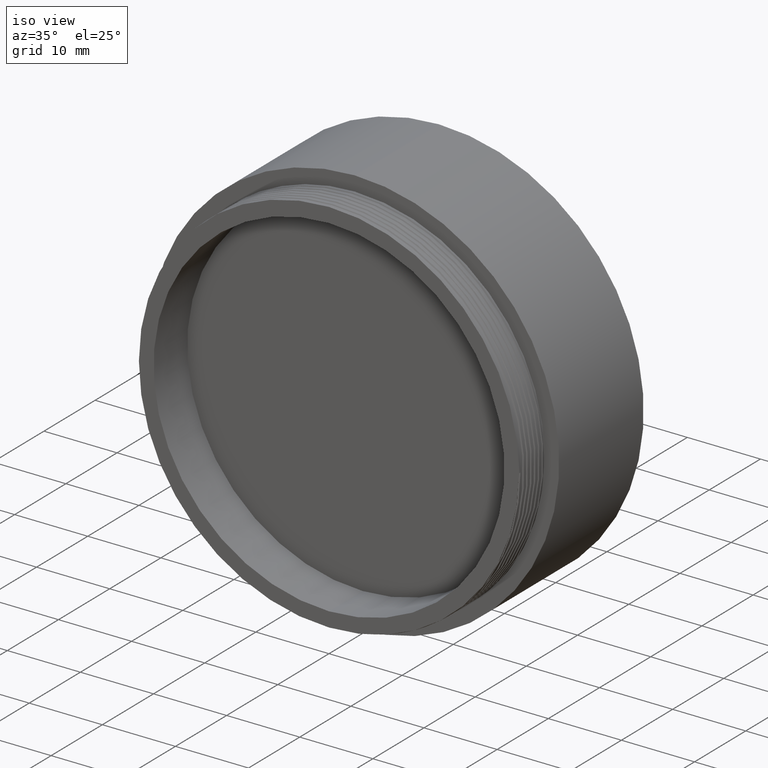
[diagram: clean part render]
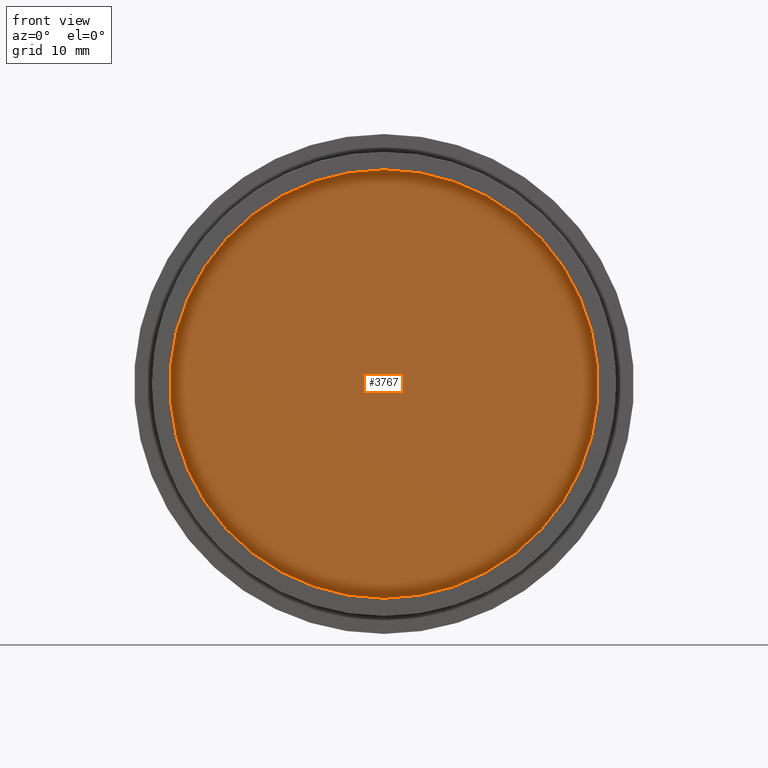
[diagram: tour spotlight — one face highlighted and labeled with its STEP entity id]
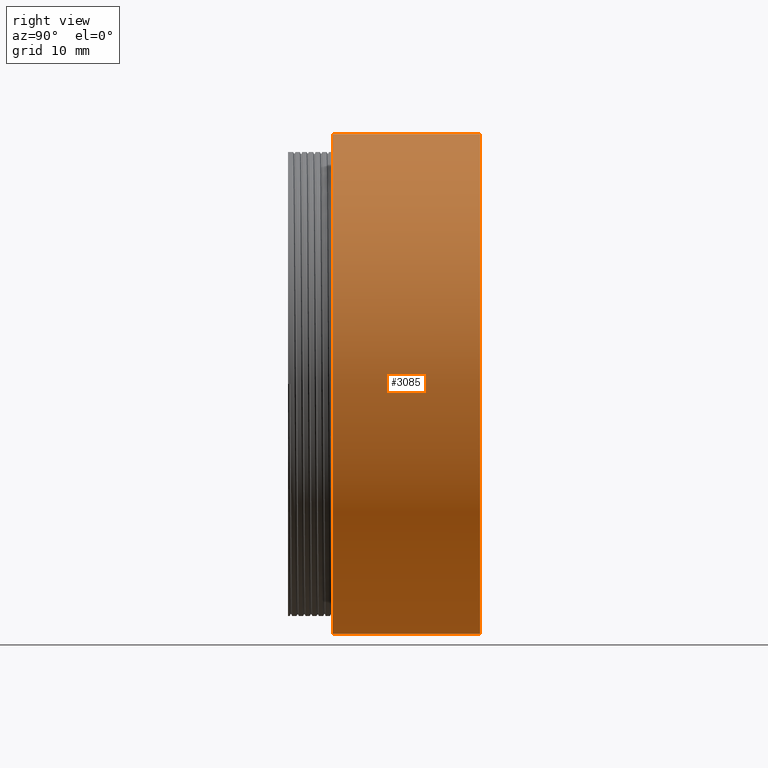
[diagram: tour spotlight — one face highlighted and labeled with its STEP entity id]
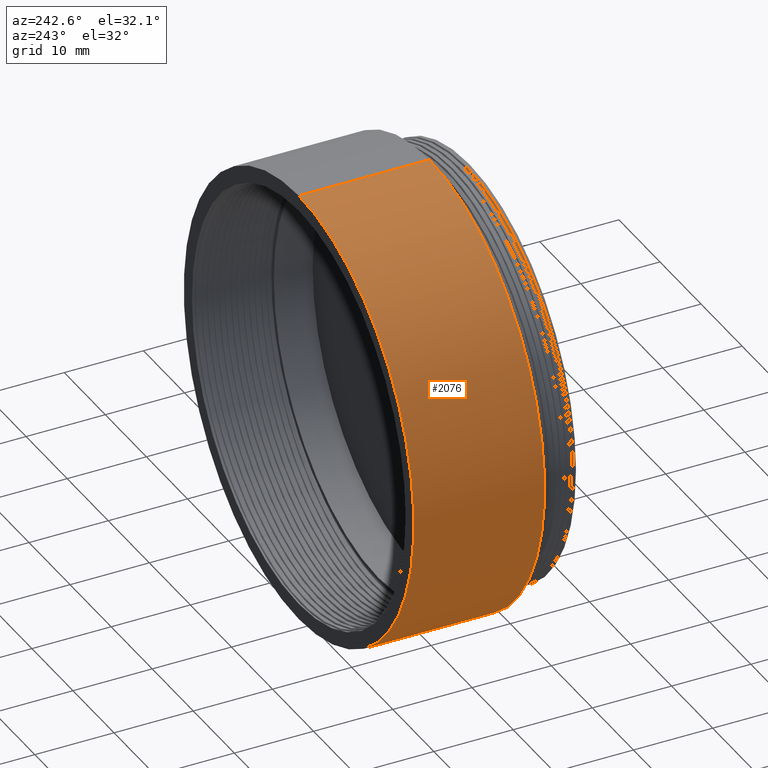
[diagram: tour spotlight — one face highlighted and labeled with its STEP entity id]
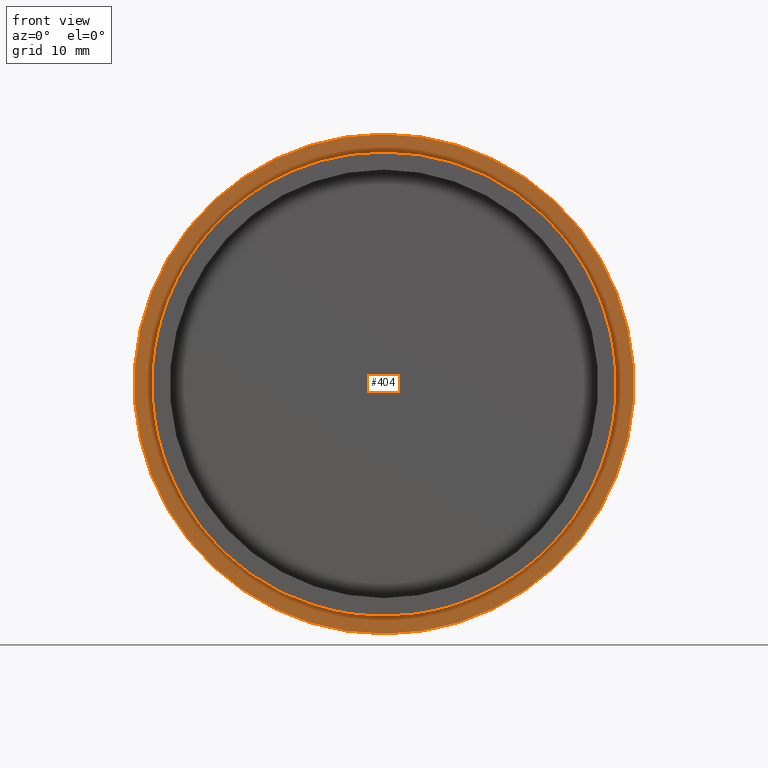
[diagram: tour spotlight — one face highlighted and labeled with its STEP entity id]
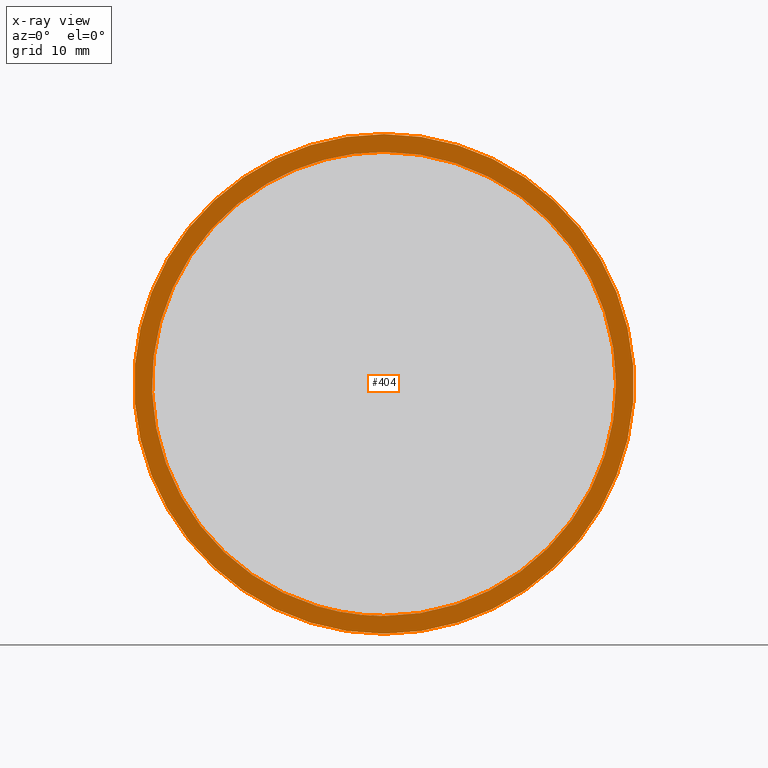
[diagram: x-ray of the same camera — body ghosted, this tour face saturated]
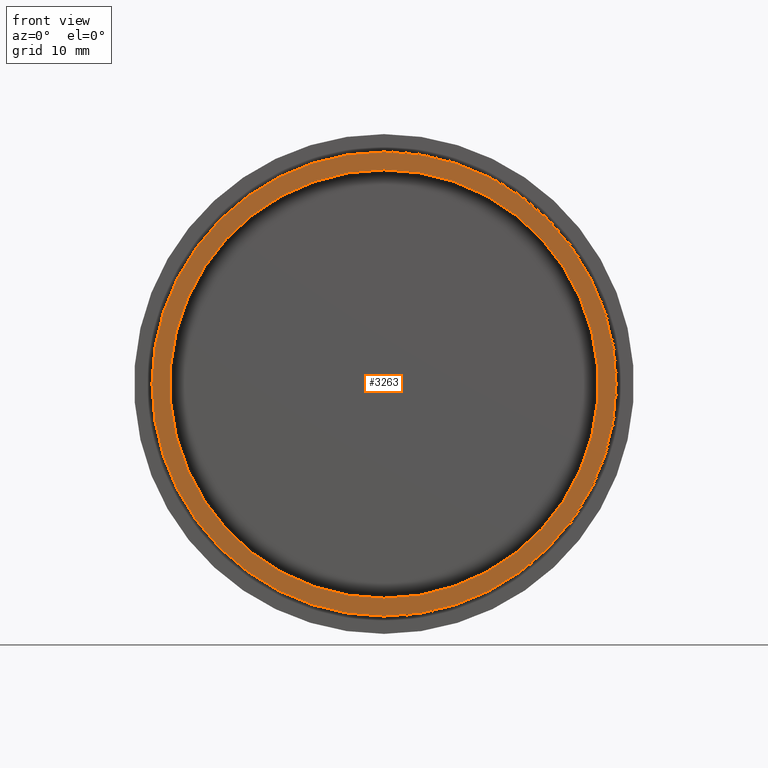
[diagram: tour spotlight — one face highlighted and labeled with its STEP entity id]
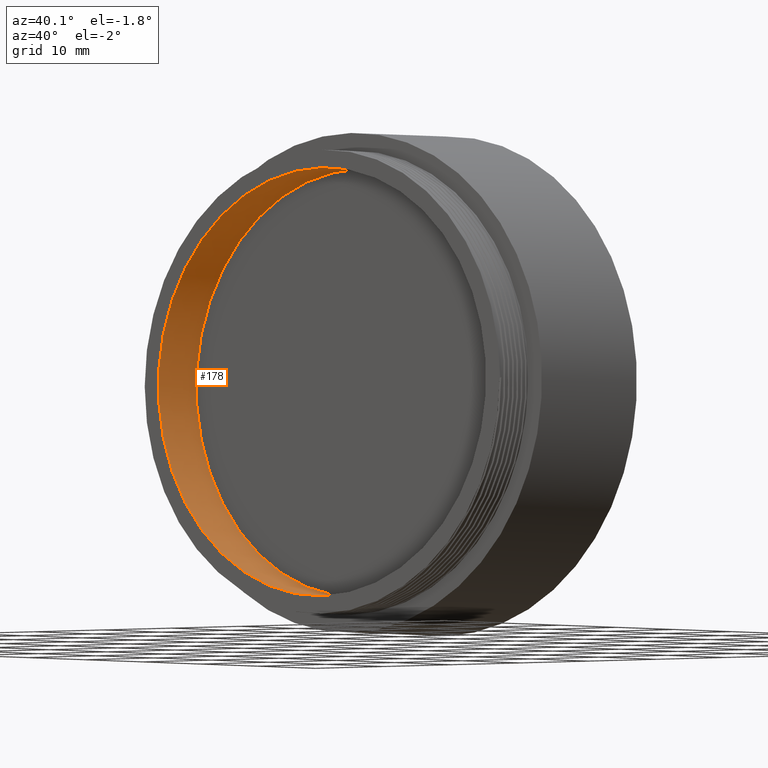
[diagram: tour spotlight — one face highlighted and labeled with its STEP entity id]
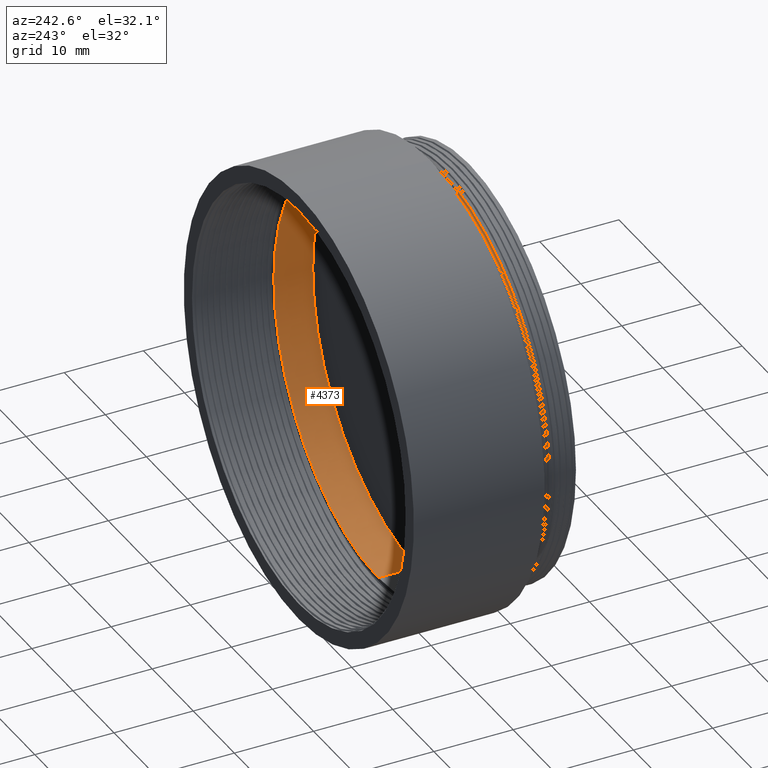
[diagram: tour spotlight — one face highlighted and labeled with its STEP entity id]
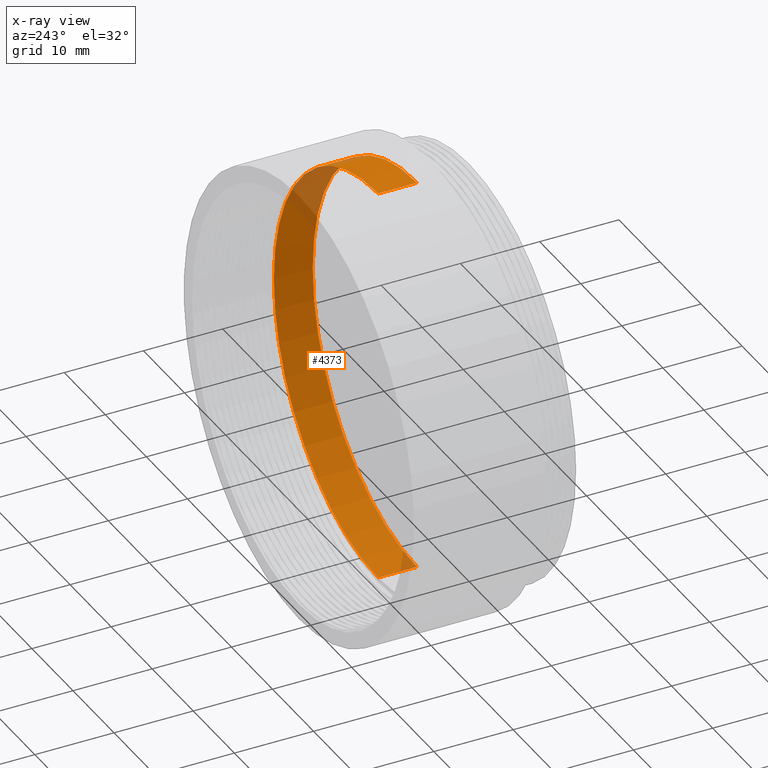
[diagram: x-ray of the same camera — body ghosted, this tour face saturated]
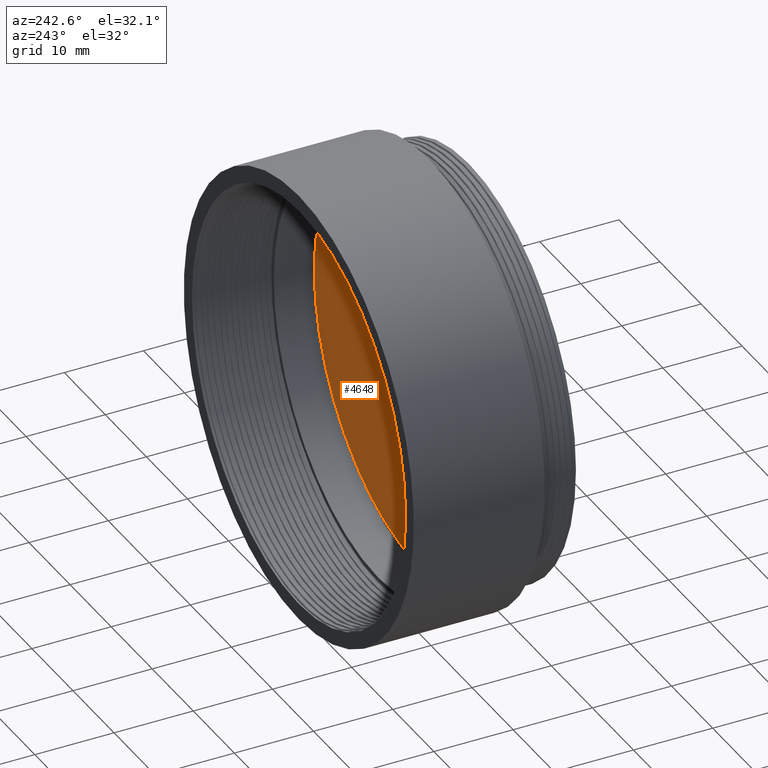
[diagram: tour spotlight — one face highlighted and labeled with its STEP entity id]
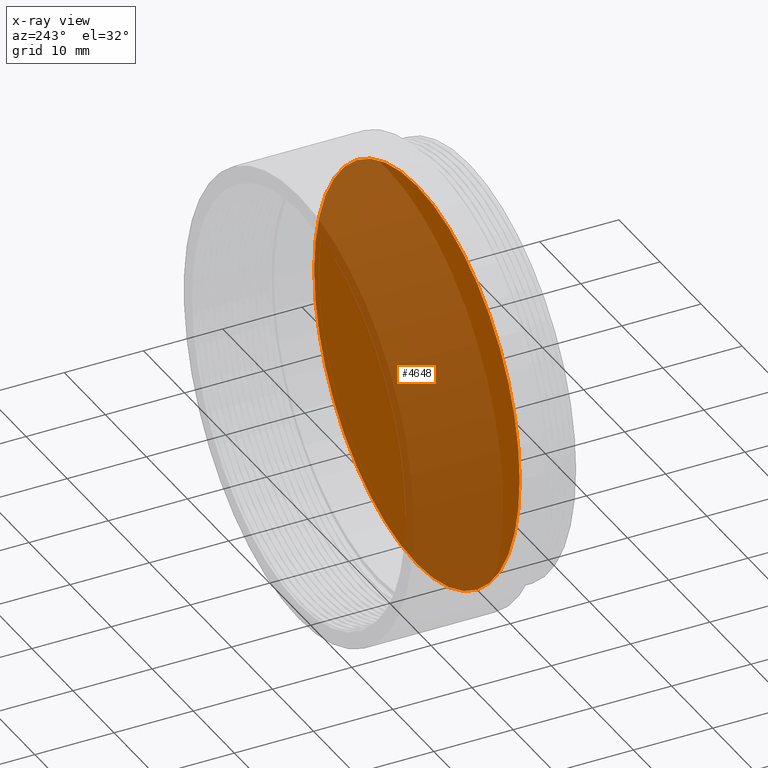
[diagram: x-ray of the same camera — body ghosted, this tour face saturated]
A machine part: a face-by-face anatomy tour. The part has 71 B-rep faces; the first image is the clean iso view, then the 8 largest visible faces are spotlighted one at a time (largest first), each with its STEP entity span.

Face 1 — front view, entity #3767. In plain terms, the highlighted planar face has unit normal (0, 1, 0).
Definition (entity closure, byte-faithful):
#185 = DIRECTION ( 'NONE',  ( 0.000000000000000000, 0.000000000000000000, -1.000000000000000000 ) ) ;
#210 = EDGE_CURVE ( 'NONE', #5360, #2771, #309, .T. ) ;
#303 = DIRECTION ( 'NONE',  ( 0.000000000000000000, -0.000000000000000000, 1.000000000000000000 ) ) ;
#309 = CIRCLE ( 'NONE', #4372, 24.00000000000000000 ) ;
#762 = FACE_OUTER_BOUND ( 'NONE', #3903, .T. ) ;
#931 = AXIS2_PLACEMENT_3D ( 'NONE', #2593, #4278, #185 ) ;
#1780 = ORIENTED_EDGE ( 'NONE', *, *, #4039, .T. ) ;
#1892 = DIRECTION ( 'NONE',  ( -0.000000000000000000, -1.000000000000000000, -0.000000000000000000 ) ) ;
#1907 = ORIENTED_EDGE ( 'NONE', *, *, #210, .T. ) ;
#2075 = CARTESIAN_POINT ( 'NONE',  ( 0.000000000000000000, 6.581606431413368874, -24.00000000000000000 ) ) ;
#2467 = CARTESIAN_POINT ( 'NONE',  ( 0.000000000000000000, 6.581606431413368874, 0.000000000000000000 ) ) ;
#2593 = CARTESIAN_POINT ( 'NONE',  ( 0.000000000000000000, 6.581606431413368874, 0.000000000000000000 ) ) ;
#2768 = CARTESIAN_POINT ( 'NONE',  ( 2.939152317953647894E-15, 6.581606431413368874, 24.00000000000000000 ) ) ;
#2771 = VERTEX_POINT ( 'NONE', #2075 ) ;
#2822 = AXIS2_PLACEMENT_3D ( 'NONE', #2467, #4154, #303 ) ;
#3581 = DIRECTION ( 'NONE',  ( 0.000000000000000000, 0.000000000000000000, -1.000000000000000000 ) ) ;
#3663 = PLANE ( 'NONE',  #2822 ) ;
#3767 = ADVANCED_FACE ( 'NONE', ( #762 ), #3663, .F. ) ;
#3773 = CIRCLE ( 'NONE', #931, 24.00000000000000000 ) ;
#3903 = EDGE_LOOP ( 'NONE', ( #1780, #1907 ) ) ;
#3991 = CARTESIAN_POINT ( 'NONE',  ( 0.000000000000000000, 6.581606431413368874, 0.000000000000000000 ) ) ;
#4039 = EDGE_CURVE ( 'NONE', #2771, #5360, #3773, .T. ) ;
#4154 = DIRECTION ( 'NONE',  ( 0.000000000000000000, 1.000000000000000000, 0.000000000000000000 ) ) ;
#4278 = DIRECTION ( 'NONE',  ( -0.000000000000000000, -1.000000000000000000, -0.000000000000000000 ) ) ;
#4372 = AXIS2_PLACEMENT_3D ( 'NONE', #3991, #1892, #3581 ) ;
#5360 = VERTEX_POINT ( 'NONE', #2768 ) ;

Face 2 — right view, entity #3085. In plain terms, the highlighted cylindrical surface (partial cylindrical patch) has radius 28 mm, axis along (-0, -1, -0).
Definition (entity closure, byte-faithful):
#18 = CARTESIAN_POINT ( 'NONE',  ( 0.000000000000000000, 21.49999999999999289, 0.000000000000000000 ) ) ;
#96 = ORIENTED_EDGE ( 'NONE', *, *, #3157, .T. ) ;
#108 = CARTESIAN_POINT ( 'NONE',  ( 3.429011037612589276E-15, 5.000000000000000000, 28.00000000000000000 ) ) ;
#233 = VERTEX_POINT ( 'NONE', #108 ) ;
#772 = CIRCLE ( 'NONE', #4590, 28.00000000000000000 ) ;
#815 = CARTESIAN_POINT ( 'NONE',  ( 0.000000000000000000, 0.000000000000000000, -28.00000000000000000 ) ) ;
#1092 = EDGE_CURVE ( 'NONE', #2775, #233, #4147, .T. ) ;
#1098 = ORIENTED_EDGE ( 'NONE', *, *, #1092, .T. ) ;
#1349 = DIRECTION ( 'NONE',  ( 0.000000000000000000, 0.000000000000000000, -1.000000000000000000 ) ) ;
#1506 = AXIS2_PLACEMENT_3D ( 'NONE', #1609, #1684, #3716 ) ;
#1609 = CARTESIAN_POINT ( 'NONE',  ( 0.000000000000000000, 5.000000000000000000, 0.000000000000000000 ) ) ;
#1684 = DIRECTION ( 'NONE',  ( -0.000000000000000000, -1.000000000000000000, -0.000000000000000000 ) ) ;
#2052 = DIRECTION ( 'NONE',  ( -0.000000000000000000, -1.000000000000000000, -0.000000000000000000 ) ) ;
#2070 = CARTESIAN_POINT ( 'NONE',  ( 3.429011037612589276E-15, 0.000000000000000000, 28.00000000000000000 ) ) ;
#2167 = EDGE_CURVE ( 'NONE', #4903, #233, #3715, .T. ) ;
#2270 = CYLINDRICAL_SURFACE ( 'NONE', #4505, 28.00000000000000000 ) ;
#2487 = DIRECTION ( 'NONE',  ( -0.000000000000000000, -1.000000000000000000, -0.000000000000000000 ) ) ;
#2492 = CARTESIAN_POINT ( 'NONE',  ( 3.429011037612589276E-15, 21.49999999999999289, 28.00000000000000000 ) ) ;
#2723 = EDGE_CURVE ( 'NONE', #2863, #4903, #5411, .T. ) ;
#2775 = VERTEX_POINT ( 'NONE', #2492 ) ;
#2863 = VERTEX_POINT ( 'NONE', #4202 ) ;
#2983 = DIRECTION ( 'NONE',  ( -0.000000000000000000, -1.000000000000000000, -0.000000000000000000 ) ) ;
#3042 = VECTOR ( 'NONE', #2487, 1000.000000000000000 ) ;
#3067 = CARTESIAN_POINT ( 'NONE',  ( 0.000000000000000000, 0.000000000000000000, 0.000000000000000000 ) ) ;
#3085 = ADVANCED_FACE ( 'NONE', ( #4343 ), #2270, .T. ) ;
#3132 = ORIENTED_EDGE ( 'NONE', *, *, #2723, .F. ) ;
#3157 = EDGE_CURVE ( 'NONE', #2863, #2775, #772, .T. ) ;
#3214 = VECTOR ( 'NONE', #2052, 1000.000000000000000 ) ;
#3285 = ORIENTED_EDGE ( 'NONE', *, *, #2167, .F. ) ;
#3456 = DIRECTION ( 'NONE',  ( 0.000000000000000000, 0.000000000000000000, -1.000000000000000000 ) ) ;
#3715 = CIRCLE ( 'NONE', #1506, 28.00000000000000000 ) ;
#3716 = DIRECTION ( 'NONE',  ( 0.000000000000000000, 0.000000000000000000, -1.000000000000000000 ) ) ;
#3899 = EDGE_LOOP ( 'NONE', ( #96, #1098, #3285, #3132 ) ) ;
#4147 = LINE ( 'NONE', #2070, #3042 ) ;
#4202 = CARTESIAN_POINT ( 'NONE',  ( 0.000000000000000000, 21.49999999999999289, -28.00000000000000000 ) ) ;
#4288 = CARTESIAN_POINT ( 'NONE',  ( 0.000000000000000000, 5.000000000000000000, -28.00000000000000000 ) ) ;
#4343 = FACE_OUTER_BOUND ( 'NONE', #3899, .T. ) ;
#4505 = AXIS2_PLACEMENT_3D ( 'NONE', #3067, #5120, #3456 ) ;
#4590 = AXIS2_PLACEMENT_3D ( 'NONE', #18, #2983, #1349 ) ;
#4903 = VERTEX_POINT ( 'NONE', #4288 ) ;
#5120 = DIRECTION ( 'NONE',  ( -0.000000000000000000, -1.000000000000000000, -0.000000000000000000 ) ) ;
#5411 = LINE ( 'NONE', #815, #3214 ) ;

Face 3 — auxiliary view, entity #2076. In plain terms, the highlighted cylindrical surface (partial cylindrical patch) has radius 28 mm, axis along (-0, -1, -0).
Definition (entity closure, byte-faithful):
#108 = CARTESIAN_POINT ( 'NONE',  ( 3.429011037612589276E-15, 5.000000000000000000, 28.00000000000000000 ) ) ;
#233 = VERTEX_POINT ( 'NONE', #108 ) ;
#252 = ORIENTED_EDGE ( 'NONE', *, *, #1092, .F. ) ;
#570 = DIRECTION ( 'NONE',  ( -0.000000000000000000, -1.000000000000000000, -0.000000000000000000 ) ) ;
#815 = CARTESIAN_POINT ( 'NONE',  ( 0.000000000000000000, 0.000000000000000000, -28.00000000000000000 ) ) ;
#827 = CIRCLE ( 'NONE', #2786, 28.00000000000000000 ) ;
#1081 = ORIENTED_EDGE ( 'NONE', *, *, #1433, .T. ) ;
#1088 = CARTESIAN_POINT ( 'NONE',  ( 0.000000000000000000, 0.000000000000000000, 0.000000000000000000 ) ) ;
#1092 = EDGE_CURVE ( 'NONE', #2775, #233, #4147, .T. ) ;
#1390 = CIRCLE ( 'NONE', #4579, 28.00000000000000000 ) ;
#1433 = EDGE_CURVE ( 'NONE', #2775, #2863, #827, .T. ) ;
#1479 = CYLINDRICAL_SURFACE ( 'NONE', #5122, 28.00000000000000000 ) ;
#1480 = ORIENTED_EDGE ( 'NONE', *, *, #2723, .T. ) ;
#1536 = DIRECTION ( 'NONE',  ( 0.000000000000000000, 0.000000000000000000, -1.000000000000000000 ) ) ;
#1538 = EDGE_LOOP ( 'NONE', ( #252, #1081, #1480, #4445 ) ) ;
#1861 = DIRECTION ( 'NONE',  ( 0.000000000000000000, 0.000000000000000000, -1.000000000000000000 ) ) ;
#2052 = DIRECTION ( 'NONE',  ( -0.000000000000000000, -1.000000000000000000, -0.000000000000000000 ) ) ;
#2070 = CARTESIAN_POINT ( 'NONE',  ( 3.429011037612589276E-15, 0.000000000000000000, 28.00000000000000000 ) ) ;
#2076 = ADVANCED_FACE ( 'NONE', ( #3140 ), #1479, .T. ) ;
#2347 = CARTESIAN_POINT ( 'NONE',  ( 0.000000000000000000, 21.49999999999999289, 0.000000000000000000 ) ) ;
#2487 = DIRECTION ( 'NONE',  ( -0.000000000000000000, -1.000000000000000000, -0.000000000000000000 ) ) ;
#2492 = CARTESIAN_POINT ( 'NONE',  ( 3.429011037612589276E-15, 21.49999999999999289, 28.00000000000000000 ) ) ;
#2723 = EDGE_CURVE ( 'NONE', #2863, #4903, #5411, .T. ) ;
#2775 = VERTEX_POINT ( 'NONE', #2492 ) ;
#2786 = AXIS2_PLACEMENT_3D ( 'NONE', #2347, #5256, #3262 ) ;
#2863 = VERTEX_POINT ( 'NONE', #4202 ) ;
#3042 = VECTOR ( 'NONE', #2487, 1000.000000000000000 ) ;
#3140 = FACE_OUTER_BOUND ( 'NONE', #1538, .T. ) ;
#3214 = VECTOR ( 'NONE', #2052, 1000.000000000000000 ) ;
#3262 = DIRECTION ( 'NONE',  ( 0.000000000000000000, 0.000000000000000000, -1.000000000000000000 ) ) ;
#3961 = CARTESIAN_POINT ( 'NONE',  ( 0.000000000000000000, 5.000000000000000000, 0.000000000000000000 ) ) ;
#4147 = LINE ( 'NONE', #2070, #3042 ) ;
#4202 = CARTESIAN_POINT ( 'NONE',  ( 0.000000000000000000, 21.49999999999999289, -28.00000000000000000 ) ) ;
#4288 = CARTESIAN_POINT ( 'NONE',  ( 0.000000000000000000, 5.000000000000000000, -28.00000000000000000 ) ) ;
#4445 = ORIENTED_EDGE ( 'NONE', *, *, #5262, .F. ) ;
#4526 = DIRECTION ( 'NONE',  ( -0.000000000000000000, -1.000000000000000000, -0.000000000000000000 ) ) ;
#4579 = AXIS2_PLACEMENT_3D ( 'NONE', #3961, #570, #1861 ) ;
#4903 = VERTEX_POINT ( 'NONE', #4288 ) ;
#5122 = AXIS2_PLACEMENT_3D ( 'NONE', #1088, #4526, #1536 ) ;
#5256 = DIRECTION ( 'NONE',  ( -0.000000000000000000, -1.000000000000000000, -0.000000000000000000 ) ) ;
#5262 = EDGE_CURVE ( 'NONE', #233, #4903, #1390, .T. ) ;
#5411 = LINE ( 'NONE', #815, #3214 ) ;

Face 4 — front view, entity #404. An x-ray twin of the same camera follows (body ghosted, this face saturated) — the face is partly hidden behind the body. In plain terms, the highlighted planar face has unit normal (0, -1, -0).
Definition (entity closure, byte-faithful):
#50 = VERTEX_POINT ( 'NONE', #1475 ) ;
#106 = VERTEX_POINT ( 'NONE', #424 ) ;
#108 = CARTESIAN_POINT ( 'NONE',  ( 3.429011037612589276E-15, 5.000000000000000000, 28.00000000000000000 ) ) ;
#233 = VERTEX_POINT ( 'NONE', #108 ) ;
#294 = ORIENTED_EDGE ( 'NONE', *, *, #5262, .T. ) ;
#362 = ORIENTED_EDGE ( 'NONE', *, *, #3361, .F. ) ;
#404 = ADVANCED_FACE ( 'NONE', ( #1899, #1453 ), #2780, .T. ) ;
#424 = CARTESIAN_POINT ( 'NONE',  ( 3.184081677783118191E-15, 5.000000000000000888, 26.00000000000000000 ) ) ;
#570 = DIRECTION ( 'NONE',  ( -0.000000000000000000, -1.000000000000000000, -0.000000000000000000 ) ) ;
#737 = ORIENTED_EDGE ( 'NONE', *, *, #4990, .F. ) ;
#904 = DIRECTION ( 'NONE',  ( -0.000000000000000000, -1.000000000000000000, -0.000000000000000000 ) ) ;
#929 = EDGE_LOOP ( 'NONE', ( #737, #4405, #2657, #362 ) ) ;
#976 = CARTESIAN_POINT ( 'NONE',  ( 0.000000000000000000, 5.000000000000000888, 0.000000000000000000 ) ) ;
#1223 = CIRCLE ( 'NONE', #2189, 26.00000000000000000 ) ;
#1333 = DIRECTION ( 'NONE',  ( 0.000000000000000000, 0.000000000000000000, -1.000000000000000000 ) ) ;
#1355 = CARTESIAN_POINT ( 'NONE',  ( 0.000000000000000000, 5.000000000000000888, 0.000000000000000000 ) ) ;
#1390 = CIRCLE ( 'NONE', #4579, 28.00000000000000000 ) ;
#1427 = DIRECTION ( 'NONE',  ( 0.000000000000000000, 0.000000000000000000, -1.000000000000000000 ) ) ;
#1453 = FACE_BOUND ( 'NONE', #929, .T. ) ;
#1475 = CARTESIAN_POINT ( 'NONE',  ( -12.99999851069322254, 4.999818409233385275, 22.51666135824700987 ) ) ;
#1506 = AXIS2_PLACEMENT_3D ( 'NONE', #1609, #1684, #3716 ) ;
#1572 = AXIS2_PLACEMENT_3D ( 'NONE', #976, #2642, #4389 ) ;
#1584 = CARTESIAN_POINT ( 'NONE',  ( -7.510375682130030484, 5.000000000000010658, -24.89165034932938880 ) ) ;
#1609 = CARTESIAN_POINT ( 'NONE',  ( 0.000000000000000000, 5.000000000000000000, 0.000000000000000000 ) ) ;
#1637 = EDGE_CURVE ( 'NONE', #106, #50, #2992, .T. ) ;
#1651 = CIRCLE ( 'NONE', #1572, 26.00000000000000000 ) ;
#1684 = DIRECTION ( 'NONE',  ( -0.000000000000000000, -1.000000000000000000, -0.000000000000000000 ) ) ;
#1695 = DIRECTION ( 'NONE',  ( -0.000000000000000000, -1.000000000000000000, -0.000000000000000000 ) ) ;
#1757 = AXIS2_PLACEMENT_3D ( 'NONE', #2013, #5400, #1333 ) ;
#1850 = CARTESIAN_POINT ( 'NONE',  ( 0.000000000000000000, 5.000000000000000888, -26.00000000000000000 ) ) ;
#1861 = DIRECTION ( 'NONE',  ( 0.000000000000000000, 0.000000000000000000, -1.000000000000000000 ) ) ;
#1899 = FACE_OUTER_BOUND ( 'NONE', #1962, .T. ) ;
#1962 = EDGE_LOOP ( 'NONE', ( #3406, #294 ) ) ;
#2013 = CARTESIAN_POINT ( 'NONE',  ( 0.000000000000000000, 5.000000000000000888, 0.000000000000000000 ) ) ;
#2167 = EDGE_CURVE ( 'NONE', #4903, #233, #3715, .T. ) ;
#2189 = AXIS2_PLACEMENT_3D ( 'NONE', #4166, #1695, #5027 ) ;
#2642 = DIRECTION ( 'NONE',  ( -0.000000000000000000, -1.000000000000000000, -0.000000000000000000 ) ) ;
#2657 = ORIENTED_EDGE ( 'NONE', *, *, #4685, .F. ) ;
#2780 = PLANE ( 'NONE',  #4841 ) ;
#2992 = CIRCLE ( 'NONE', #1757, 26.00000000000000000 ) ;
#3361 = EDGE_CURVE ( 'NONE', #3664, #4163, #1223, .T. ) ;
#3406 = ORIENTED_EDGE ( 'NONE', *, *, #2167, .T. ) ;
#3664 = VERTEX_POINT ( 'NONE', #1584 ) ;
#3715 = CIRCLE ( 'NONE', #1506, 28.00000000000000000 ) ;
#3716 = DIRECTION ( 'NONE',  ( 0.000000000000000000, 0.000000000000000000, -1.000000000000000000 ) ) ;
#3949 = AXIS2_PLACEMENT_3D ( 'NONE', #1355, #904, #5469 ) ;
#3961 = CARTESIAN_POINT ( 'NONE',  ( 0.000000000000000000, 5.000000000000000000, 0.000000000000000000 ) ) ;
#4163 = VERTEX_POINT ( 'NONE', #1850 ) ;
#4166 = CARTESIAN_POINT ( 'NONE',  ( 0.000000000000000000, 5.000000000000000888, 0.000000000000000000 ) ) ;
#4215 = CIRCLE ( 'NONE', #3949, 26.00000000000000000 ) ;
#4288 = CARTESIAN_POINT ( 'NONE',  ( 0.000000000000000000, 5.000000000000000000, -28.00000000000000000 ) ) ;
#4389 = DIRECTION ( 'NONE',  ( 0.000000000000000000, 0.000000000000000000, -1.000000000000000000 ) ) ;
#4405 = ORIENTED_EDGE ( 'NONE', *, *, #1637, .F. ) ;
#4473 = DIRECTION ( 'NONE',  ( 0.000000000000000000, -1.000000000000000000, -0.000000000000000000 ) ) ;
#4579 = AXIS2_PLACEMENT_3D ( 'NONE', #3961, #570, #1861 ) ;
#4685 = EDGE_CURVE ( 'NONE', #4163, #106, #1651, .T. ) ;
#4841 = AXIS2_PLACEMENT_3D ( 'NONE', #5225, #4473, #1427 ) ;
#4903 = VERTEX_POINT ( 'NONE', #4288 ) ;
#4990 = EDGE_CURVE ( 'NONE', #50, #3664, #4215, .T. ) ;
#5027 = DIRECTION ( 'NONE',  ( 0.000000000000000000, 0.000000000000000000, -1.000000000000000000 ) ) ;
#5225 = CARTESIAN_POINT ( 'NONE',  ( 26.00000000000000000, 5.000000000000000888, 0.000000000000000000 ) ) ;
#5262 = EDGE_CURVE ( 'NONE', #233, #4903, #1390, .T. ) ;
#5400 = DIRECTION ( 'NONE',  ( -0.000000000000000000, -1.000000000000000000, -0.000000000000000000 ) ) ;
#5469 = DIRECTION ( 'NONE',  ( 0.000000000000000000, 0.000000000000000000, -1.000000000000000000 ) ) ;

Face 5 — front view, entity #3263. In plain terms, the highlighted planar face has unit normal (0, -1, -0).
Definition (entity closure, byte-faithful):
#91 = DIRECTION ( 'NONE',  ( 0.000000000000000000, 0.000000000000000000, -1.000000000000000000 ) ) ;
#403 = AXIS2_PLACEMENT_3D ( 'NONE', #525, #1844, #1456 ) ;
#419 = CARTESIAN_POINT ( 'NONE',  ( 0.000000000000000000, -2.449293598294700991E-16, -24.00000000000000000 ) ) ;
#426 = CARTESIAN_POINT ( 'NONE',  ( 2.939152317953647894E-15, -2.449293598294700991E-16, 24.00000000000000000 ) ) ;
#499 = AXIS2_PLACEMENT_3D ( 'NONE', #3312, #883, #2582 ) ;
#525 = CARTESIAN_POINT ( 'NONE',  ( 0.000000000000000000, -2.449293598294700991E-16, 0.000000000000000000 ) ) ;
#620 = ORIENTED_EDGE ( 'NONE', *, *, #1397, .T. ) ;
#693 = DIRECTION ( 'NONE',  ( -0.000000000000000000, -1.000000000000000000, -0.000000000000000000 ) ) ;
#719 = DIRECTION ( 'NONE',  ( 0.000000000000000000, 0.000000000000000000, -1.000000000000000000 ) ) ;
#829 = PLANE ( 'NONE',  #2635 ) ;
#883 = DIRECTION ( 'NONE',  ( -0.000000000000000000, -1.000000000000000000, -0.000000000000000000 ) ) ;
#992 = EDGE_LOOP ( 'NONE', ( #5349, #1585 ) ) ;
#1125 = CIRCLE ( 'NONE', #2274, 26.00000000000000000 ) ;
#1255 = EDGE_CURVE ( 'NONE', #3379, #5002, #3756, .T. ) ;
#1366 = AXIS2_PLACEMENT_3D ( 'NONE', #5373, #4451, #1903 ) ;
#1397 = EDGE_CURVE ( 'NONE', #5320, #3379, #3236, .T. ) ;
#1456 = DIRECTION ( 'NONE',  ( 0.000000000000000000, 0.000000000000000000, -1.000000000000000000 ) ) ;
#1585 = ORIENTED_EDGE ( 'NONE', *, *, #4751, .F. ) ;
#1641 = EDGE_LOOP ( 'NONE', ( #620, #4789, #1935 ) ) ;
#1644 = CARTESIAN_POINT ( 'NONE',  ( 26.00000000000000000, -1.224646799147350495E-16, 0.000000000000000000 ) ) ;
#1667 = CIRCLE ( 'NONE', #499, 24.00000000000000000 ) ;
#1844 = DIRECTION ( 'NONE',  ( -0.000000000000000000, -1.000000000000000000, -0.000000000000000000 ) ) ;
#1845 = CARTESIAN_POINT ( 'NONE',  ( 0.000000000000000000, 0.000000000000000000, 0.000000000000000000 ) ) ;
#1903 = DIRECTION ( 'NONE',  ( 0.000000000000000000, 0.000000000000000000, -1.000000000000000000 ) ) ;
#1935 = ORIENTED_EDGE ( 'NONE', *, *, #4892, .T. ) ;
#2088 = FACE_BOUND ( 'NONE', #992, .T. ) ;
#2115 = DIRECTION ( 'NONE',  ( 0.000000000000000000, 0.000000000000000000, -1.000000000000000000 ) ) ;
#2274 = AXIS2_PLACEMENT_3D ( 'NONE', #2834, #693, #719 ) ;
#2304 = VERTEX_POINT ( 'NONE', #426 ) ;
#2582 = DIRECTION ( 'NONE',  ( 0.000000000000000000, 0.000000000000000000, -1.000000000000000000 ) ) ;
#2635 = AXIS2_PLACEMENT_3D ( 'NONE', #1644, #3409, #2115 ) ;
#2834 = CARTESIAN_POINT ( 'NONE',  ( 0.000000000000000000, 0.000000000000000000, 0.000000000000000000 ) ) ;
#2874 = CARTESIAN_POINT ( 'NONE',  ( 26.00000000000000000, 0.000000000000000000, 0.000000000000000000 ) ) ;
#2938 = CARTESIAN_POINT ( 'NONE',  ( 3.184081677783118191E-15, 0.000000000000000000, 26.00000000000000000 ) ) ;
#3027 = DIRECTION ( 'NONE',  ( -0.000000000000000000, -1.000000000000000000, -0.000000000000000000 ) ) ;
#3202 = EDGE_CURVE ( 'NONE', #4429, #2304, #1667, .T. ) ;
#3236 = CIRCLE ( 'NONE', #1366, 26.00000000000000000 ) ;
#3263 = ADVANCED_FACE ( 'NONE', ( #4192, #2088 ), #829, .T. ) ;
#3312 = CARTESIAN_POINT ( 'NONE',  ( 0.000000000000000000, -2.449293598294700991E-16, 0.000000000000000000 ) ) ;
#3379 = VERTEX_POINT ( 'NONE', #2938 ) ;
#3405 = CARTESIAN_POINT ( 'NONE',  ( 0.000000000000000000, 0.000000000000000000, -26.00000000000000000 ) ) ;
#3409 = DIRECTION ( 'NONE',  ( 0.000000000000000000, -1.000000000000000000, -0.000000000000000000 ) ) ;
#3511 = CIRCLE ( 'NONE', #403, 24.00000000000000000 ) ;
#3756 = CIRCLE ( 'NONE', #5170, 26.00000000000000000 ) ;
#4192 = FACE_OUTER_BOUND ( 'NONE', #1641, .T. ) ;
#4429 = VERTEX_POINT ( 'NONE', #419 ) ;
#4451 = DIRECTION ( 'NONE',  ( -0.000000000000000000, -1.000000000000000000, -0.000000000000000000 ) ) ;
#4751 = EDGE_CURVE ( 'NONE', #2304, #4429, #3511, .T. ) ;
#4789 = ORIENTED_EDGE ( 'NONE', *, *, #1255, .T. ) ;
#4892 = EDGE_CURVE ( 'NONE', #5002, #5320, #1125, .T. ) ;
#5002 = VERTEX_POINT ( 'NONE', #3405 ) ;
#5170 = AXIS2_PLACEMENT_3D ( 'NONE', #1845, #3027, #91 ) ;
#5320 = VERTEX_POINT ( 'NONE', #2874 ) ;
#5349 = ORIENTED_EDGE ( 'NONE', *, *, #3202, .F. ) ;
#5373 = CARTESIAN_POINT ( 'NONE',  ( 0.000000000000000000, 0.000000000000000000, 0.000000000000000000 ) ) ;

Face 6 — auxiliary view, entity #178. In plain terms, the highlighted cylindrical surface (partial cylindrical patch) has radius 24 mm, axis along (-0, -1, -0).
Definition (entity closure, byte-faithful):
#178 = ADVANCED_FACE ( 'NONE', ( #1419 ), #602, .F. ) ;
#210 = EDGE_CURVE ( 'NONE', #5360, #2771, #309, .T. ) ;
#309 = CIRCLE ( 'NONE', #4372, 24.00000000000000000 ) ;
#403 = AXIS2_PLACEMENT_3D ( 'NONE', #525, #1844, #1456 ) ;
#408 = LINE ( 'NONE', #484, #848 ) ;
#419 = CARTESIAN_POINT ( 'NONE',  ( 0.000000000000000000, -2.449293598294700991E-16, -24.00000000000000000 ) ) ;
#426 = CARTESIAN_POINT ( 'NONE',  ( 2.939152317953647894E-15, -2.449293598294700991E-16, 24.00000000000000000 ) ) ;
#484 = CARTESIAN_POINT ( 'NONE',  ( 2.939152317953647894E-15, 0.000000000000000000, 24.00000000000000000 ) ) ;
#525 = CARTESIAN_POINT ( 'NONE',  ( 0.000000000000000000, -2.449293598294700991E-16, 0.000000000000000000 ) ) ;
#602 = CYLINDRICAL_SURFACE ( 'NONE', #2695, 24.00000000000000000 ) ;
#610 = ORIENTED_EDGE ( 'NONE', *, *, #4751, .T. ) ;
#848 = VECTOR ( 'NONE', #3463, 1000.000000000000000 ) ;
#995 = DIRECTION ( 'NONE',  ( 0.000000000000000000, 0.000000000000000000, -1.000000000000000000 ) ) ;
#1304 = DIRECTION ( 'NONE',  ( -0.000000000000000000, -1.000000000000000000, -0.000000000000000000 ) ) ;
#1363 = ORIENTED_EDGE ( 'NONE', *, *, #4961, .T. ) ;
#1419 = FACE_OUTER_BOUND ( 'NONE', #3796, .T. ) ;
#1456 = DIRECTION ( 'NONE',  ( 0.000000000000000000, 0.000000000000000000, -1.000000000000000000 ) ) ;
#1560 = ORIENTED_EDGE ( 'NONE', *, *, #3386, .F. ) ;
#1721 = LINE ( 'NONE', #4638, #3348 ) ;
#1844 = DIRECTION ( 'NONE',  ( -0.000000000000000000, -1.000000000000000000, -0.000000000000000000 ) ) ;
#1892 = DIRECTION ( 'NONE',  ( -0.000000000000000000, -1.000000000000000000, -0.000000000000000000 ) ) ;
#2075 = CARTESIAN_POINT ( 'NONE',  ( 0.000000000000000000, 6.581606431413368874, -24.00000000000000000 ) ) ;
#2304 = VERTEX_POINT ( 'NONE', #426 ) ;
#2695 = AXIS2_PLACEMENT_3D ( 'NONE', #3074, #3105, #995 ) ;
#2768 = CARTESIAN_POINT ( 'NONE',  ( 2.939152317953647894E-15, 6.581606431413368874, 24.00000000000000000 ) ) ;
#2771 = VERTEX_POINT ( 'NONE', #2075 ) ;
#3045 = ORIENTED_EDGE ( 'NONE', *, *, #210, .F. ) ;
#3074 = CARTESIAN_POINT ( 'NONE',  ( 0.000000000000000000, 0.000000000000000000, 0.000000000000000000 ) ) ;
#3105 = DIRECTION ( 'NONE',  ( -0.000000000000000000, -1.000000000000000000, -0.000000000000000000 ) ) ;
#3348 = VECTOR ( 'NONE', #1304, 1000.000000000000000 ) ;
#3386 = EDGE_CURVE ( 'NONE', #2771, #4429, #1721, .T. ) ;
#3463 = DIRECTION ( 'NONE',  ( -0.000000000000000000, -1.000000000000000000, -0.000000000000000000 ) ) ;
#3511 = CIRCLE ( 'NONE', #403, 24.00000000000000000 ) ;
#3581 = DIRECTION ( 'NONE',  ( 0.000000000000000000, 0.000000000000000000, -1.000000000000000000 ) ) ;
#3796 = EDGE_LOOP ( 'NONE', ( #3045, #1363, #610, #1560 ) ) ;
#3991 = CARTESIAN_POINT ( 'NONE',  ( 0.000000000000000000, 6.581606431413368874, 0.000000000000000000 ) ) ;
#4372 = AXIS2_PLACEMENT_3D ( 'NONE', #3991, #1892, #3581 ) ;
#4429 = VERTEX_POINT ( 'NONE', #419 ) ;
#4638 = CARTESIAN_POINT ( 'NONE',  ( 0.000000000000000000, 0.000000000000000000, -24.00000000000000000 ) ) ;
#4751 = EDGE_CURVE ( 'NONE', #2304, #4429, #3511, .T. ) ;
#4961 = EDGE_CURVE ( 'NONE', #5360, #2304, #408, .T. ) ;
#5360 = VERTEX_POINT ( 'NONE', #2768 ) ;

Face 7 — auxiliary view, entity #4373. An x-ray twin of the same camera follows (body ghosted, this face saturated) — the face is partly hidden behind the body. In plain terms, the highlighted cylindrical surface (partial cylindrical patch) has radius 25.4 mm, axis along (-0, -1, -0).
Definition (entity closure, byte-faithful):
#149 = AXIS2_PLACEMENT_3D ( 'NONE', #3365, #1649, #4723 ) ;
#153 = DIRECTION ( 'NONE',  ( -0.000000000000000000, -1.000000000000000000, -0.000000000000000000 ) ) ;
#274 = CARTESIAN_POINT ( 'NONE',  ( 3.110602869834276865E-15, 6.581606431413368874, 25.39999999999999858 ) ) ;
#554 = DIRECTION ( 'NONE',  ( -0.000000000000000000, -1.000000000000000000, -0.000000000000000000 ) ) ;
#756 = CARTESIAN_POINT ( 'NONE',  ( 3.110602869834276865E-15, 0.000000000000000000, 25.39999999999999858 ) ) ;
#953 = ORIENTED_EDGE ( 'NONE', *, *, #1230, .T. ) ;
#1091 = EDGE_CURVE ( 'NONE', #4635, #5280, #4564, .T. ) ;
#1108 = AXIS2_PLACEMENT_3D ( 'NONE', #2170, #153, #1754 ) ;
#1159 = EDGE_LOOP ( 'NONE', ( #3626, #3693, #3075, #953 ) ) ;
#1230 = EDGE_CURVE ( 'NONE', #2033, #5280, #4647, .T. ) ;
#1296 = VECTOR ( 'NONE', #554, 1000.000000000000000 ) ;
#1547 = DIRECTION ( 'NONE',  ( -0.000000000000000000, -1.000000000000000000, -0.000000000000000000 ) ) ;
#1601 = FACE_OUTER_BOUND ( 'NONE', #1159, .T. ) ;
#1649 = DIRECTION ( 'NONE',  ( -0.000000000000000000, -1.000000000000000000, -0.000000000000000000 ) ) ;
#1754 = DIRECTION ( 'NONE',  ( 0.000000000000000000, 0.000000000000000000, -1.000000000000000000 ) ) ;
#1830 = AXIS2_PLACEMENT_3D ( 'NONE', #5347, #1547, #3238 ) ;
#2033 = VERTEX_POINT ( 'NONE', #3558 ) ;
#2095 = CIRCLE ( 'NONE', #149, 25.39999999999999858 ) ;
#2170 = CARTESIAN_POINT ( 'NONE',  ( 0.000000000000000000, 6.581606431413368874, 0.000000000000000000 ) ) ;
#2320 = LINE ( 'NONE', #3474, #1296 ) ;
#2461 = DIRECTION ( 'NONE',  ( -0.000000000000000000, -1.000000000000000000, -0.000000000000000000 ) ) ;
#3075 = ORIENTED_EDGE ( 'NONE', *, *, #4588, .T. ) ;
#3238 = DIRECTION ( 'NONE',  ( 0.000000000000000000, 0.000000000000000000, -1.000000000000000000 ) ) ;
#3365 = CARTESIAN_POINT ( 'NONE',  ( 0.000000000000000000, 11.48367084504014812, 0.000000000000000000 ) ) ;
#3474 = CARTESIAN_POINT ( 'NONE',  ( 0.000000000000000000, 0.000000000000000000, -25.39999999999999858 ) ) ;
#3558 = CARTESIAN_POINT ( 'NONE',  ( 0.000000000000000000, 6.581606431413368874, -25.39999999999999858 ) ) ;
#3626 = ORIENTED_EDGE ( 'NONE', *, *, #1091, .F. ) ;
#3654 = CYLINDRICAL_SURFACE ( 'NONE', #1830, 25.39999999999999858 ) ;
#3693 = ORIENTED_EDGE ( 'NONE', *, *, #4518, .F. ) ;
#3931 = VECTOR ( 'NONE', #2461, 1000.000000000000000 ) ;
#4373 = ADVANCED_FACE ( 'NONE', ( #1601 ), #3654, .F. ) ;
#4518 = EDGE_CURVE ( 'NONE', #4556, #4635, #2095, .T. ) ;
#4556 = VERTEX_POINT ( 'NONE', #5033 ) ;
#4564 = LINE ( 'NONE', #756, #3931 ) ;
#4588 = EDGE_CURVE ( 'NONE', #4556, #2033, #2320, .T. ) ;
#4635 = VERTEX_POINT ( 'NONE', #5198 ) ;
#4647 = CIRCLE ( 'NONE', #1108, 25.39999999999999858 ) ;
#4723 = DIRECTION ( 'NONE',  ( 0.000000000000000000, 0.000000000000000000, -1.000000000000000000 ) ) ;
#5033 = CARTESIAN_POINT ( 'NONE',  ( 0.000000000000000000, 11.48367084504014812, -25.39999999999999858 ) ) ;
#5198 = CARTESIAN_POINT ( 'NONE',  ( 3.110602869834276865E-15, 11.48367084504014812, 25.39999999999999858 ) ) ;
#5280 = VERTEX_POINT ( 'NONE', #274 ) ;
#5347 = CARTESIAN_POINT ( 'NONE',  ( 0.000000000000000000, 0.000000000000000000, 0.000000000000000000 ) ) ;

Face 8 — auxiliary view, entity #4648. An x-ray twin of the same camera follows (body ghosted, this face saturated) — the face is partly hidden behind the body. In plain terms, the highlighted planar face has unit normal (0, 1, 0).
Definition (entity closure, byte-faithful):
#152 = CARTESIAN_POINT ( 'NONE',  ( 0.000000000000000000, 6.591606431413368661, 0.000000000000000000 ) ) ;
#684 = ORIENTED_EDGE ( 'NONE', *, *, #4296, .T. ) ;
#784 = DIRECTION ( 'NONE',  ( 0.000000000000000000, 0.000000000000000000, 1.000000000000000000 ) ) ;
#1820 = VERTEX_POINT ( 'NONE', #2171 ) ;
#2084 = CARTESIAN_POINT ( 'NONE',  ( 0.000000000000000000, 6.591606431413368661, -25.00000000000000000 ) ) ;
#2171 = CARTESIAN_POINT ( 'NONE',  ( 3.061616997868382254E-15, 6.591606431413368661, 25.00000000000000000 ) ) ;
#2184 = DIRECTION ( 'NONE',  ( 0.000000000000000000, 1.000000000000000000, 0.000000000000000000 ) ) ;
#2603 = CARTESIAN_POINT ( 'NONE',  ( 0.000000000000000000, 6.591606431413368661, 0.000000000000000000 ) ) ;
#2672 = DIRECTION ( 'NONE',  ( 0.000000000000000000, 1.000000000000000000, 0.000000000000000000 ) ) ;
#2843 = CARTESIAN_POINT ( 'NONE',  ( 0.000000000000000000, 6.591606431413368661, 0.000000000000000000 ) ) ;
#3117 = DIRECTION ( 'NONE',  ( 0.000000000000000000, -0.000000000000000000, 1.000000000000000000 ) ) ;
#3162 = AXIS2_PLACEMENT_3D ( 'NONE', #2843, #4146, #784 ) ;
#3253 = CIRCLE ( 'NONE', #3162, 25.00000000000000000 ) ;
#3563 = PLANE ( 'NONE',  #4577 ) ;
#4003 = FACE_OUTER_BOUND ( 'NONE', #4801, .T. ) ;
#4146 = DIRECTION ( 'NONE',  ( 0.000000000000000000, 1.000000000000000000, 0.000000000000000000 ) ) ;
#4296 = EDGE_CURVE ( 'NONE', #1820, #4957, #3253, .T. ) ;
#4577 = AXIS2_PLACEMENT_3D ( 'NONE', #152, #2672, #3117 ) ;
#4648 = ADVANCED_FACE ( 'NONE', ( #4003 ), #3563, .T. ) ;
#4750 = CIRCLE ( 'NONE', #4939, 25.00000000000000000 ) ;
#4801 = EDGE_LOOP ( 'NONE', ( #5246, #684 ) ) ;
#4939 = AXIS2_PLACEMENT_3D ( 'NONE', #2603, #2184, #5047 ) ;
#4957 = VERTEX_POINT ( 'NONE', #2084 ) ;
#5022 = EDGE_CURVE ( 'NONE', #4957, #1820, #4750, .T. ) ;
#5047 = DIRECTION ( 'NONE',  ( 0.000000000000000000, 0.000000000000000000, 1.000000000000000000 ) ) ;
#5246 = ORIENTED_EDGE ( 'NONE', *, *, #5022, .T. ) ;